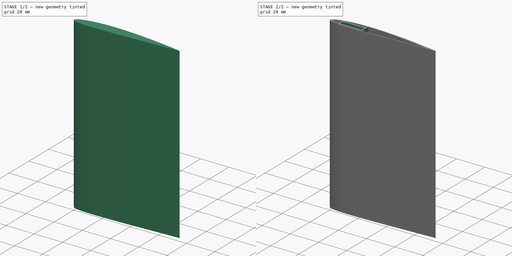
[diagram: build sequence overview — one tinted view per stage of 2, left to right]
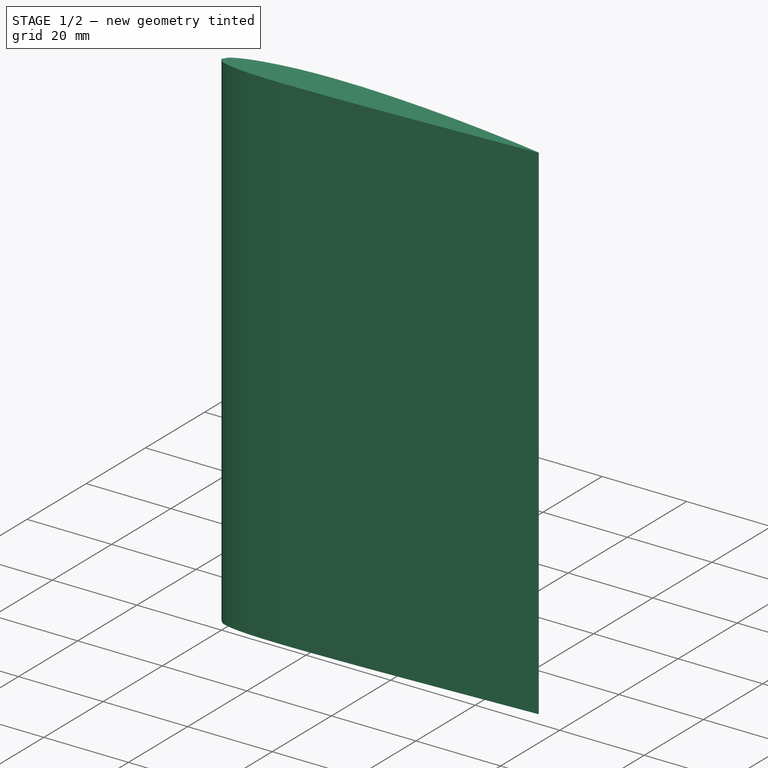
[diagram: stage 1 of 2 — iso view after this stage's code; geometry added in this stage tinted green]
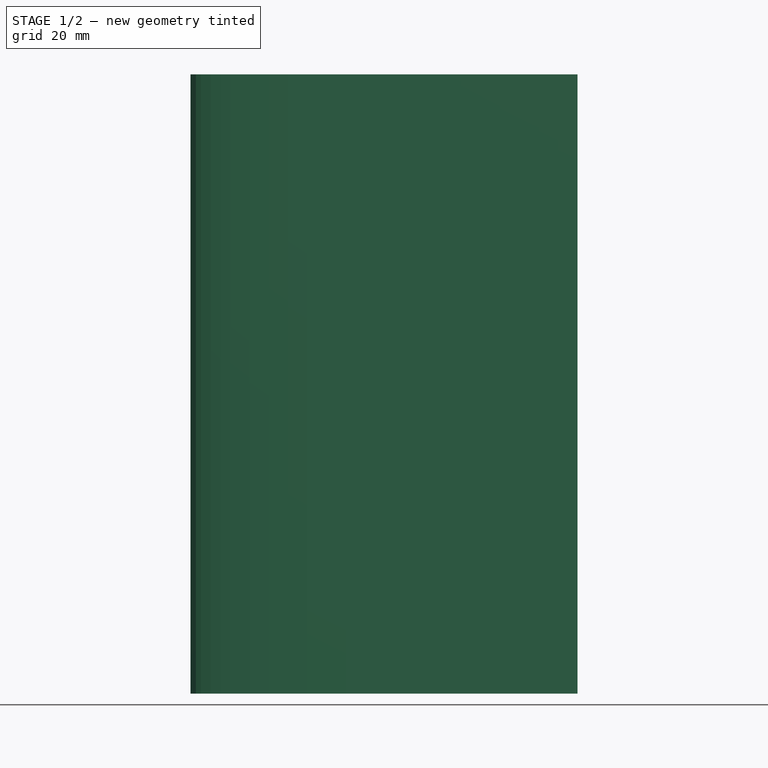
[diagram: stage 1 of 2 — front view after this stage's code; geometry added in this stage tinted green]
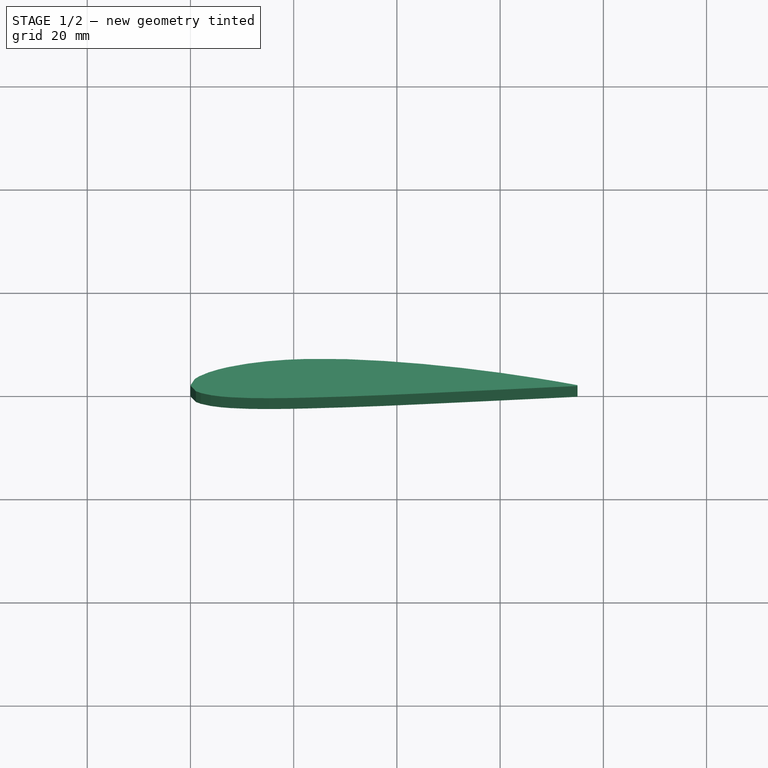
[diagram: stage 1 of 2 — top view after this stage's code; geometry added in this stage tinted green]
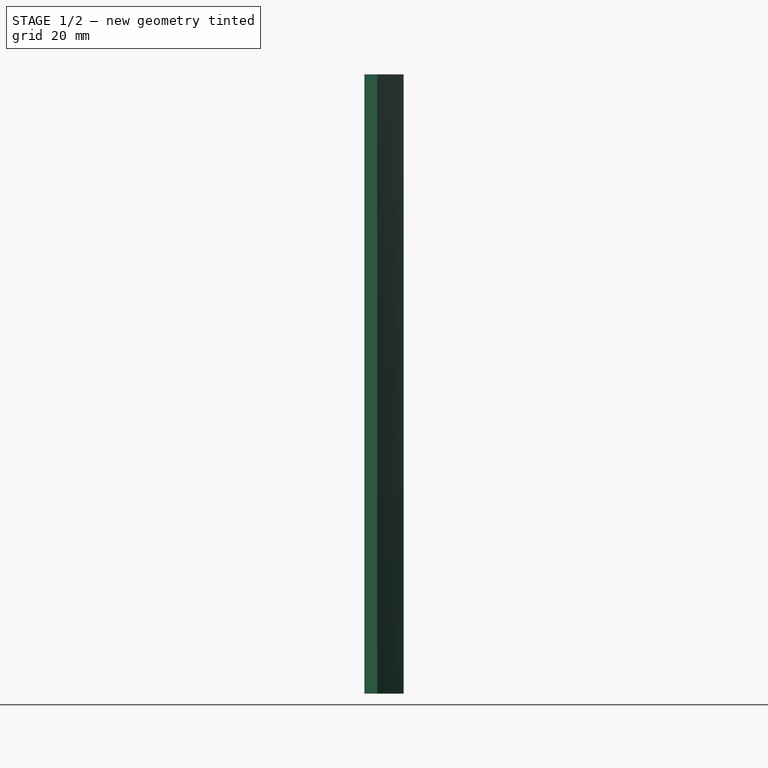
[diagram: stage 1 of 2 — right view after this stage's code; geometry added in this stage tinted green]
FCSTD DOCUMENT  (FreeCAD 0.16R6712 (Git))
Label: Aile_double_milieu
License: All rights reserved
LicenseURL: http://en.wikipedia.org/wiki/All_rights_reserved
objects: PartDesign::Pad×3, Part::Part2DObjectPython×2, Part::Cut×1, Sketcher::SketchObject×1
note: 10 computed .brp shape members not serialized (recipe doc carries the construction recipe); baked Part::Feature solids carry a one-line shape summary decoded from their .brp

FEATURE [Part::Part2DObjectPython] DWire  # Draft 2D object (typed FeaturePython)
  ChamferSize = 0
  Closed = true
  End = (75,-0.07875,0)
  FilletRadius = 0
  Length = 152.352
  MakeFace = true
  Points = (35) [(75,0.07875,0),(71.2807,0.7425,0),(67.5502,1.362,0),(60.0727,2.472,0),(52.5765,3.41325,0),(45.0637,4.185,0),(37.5367,4.767,0),(30,5.12775,0),+27 more]
  Start = (75,0.07875,0)
  Subdivisions = 0
FEATURE [PartDesign::Pad] Pad
  Length = 120
  Length2 = 100
  Sketch = -> DWire
  Type = 0
FEATURE [Part::Part2DObjectPython] DWire001  # Draft 2D object (typed FeaturePython)
  ChamferSize = 0
  Closed = true
  End = (67,0.08175,0)
  FilletRadius = 0
  Length = 132.038
  MakeFace = true
  Placement = pos=(2,0.15,0) rot=(0,0,1;0rad)
  Points = (35) [(65,0.06825,0),(61.7766,0.6435,0),(58.5435,1.1804,0),(52.063,2.1424,0),(45.5663,2.95815,0),(39.0553,3.627,0),(32.5318,4.1314,0),(26,4.44405,0),+27 more]
  Start = (67,0.21825,0)
  Subdivisions = 0
FEATURE [PartDesign::Pad] Pad001
  Length = 120
  Length2 = 100
  Placement = pos=(2,0.15,0) rot=(0,0,1;0rad)
  Sketch = -> DWire001
  Type = 0
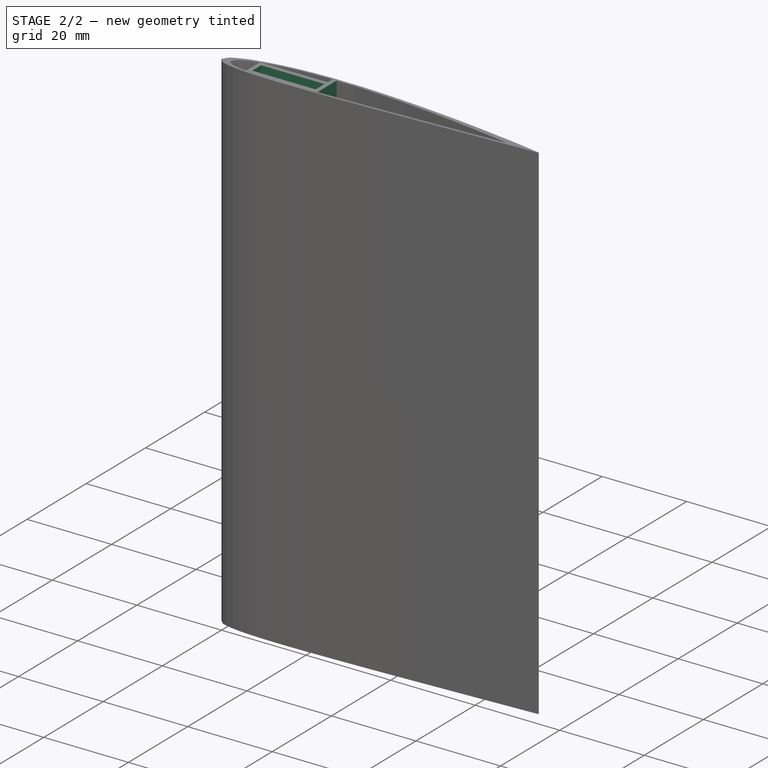
[diagram: stage 2 of 2 — iso view after this stage's code; geometry added in this stage tinted green]
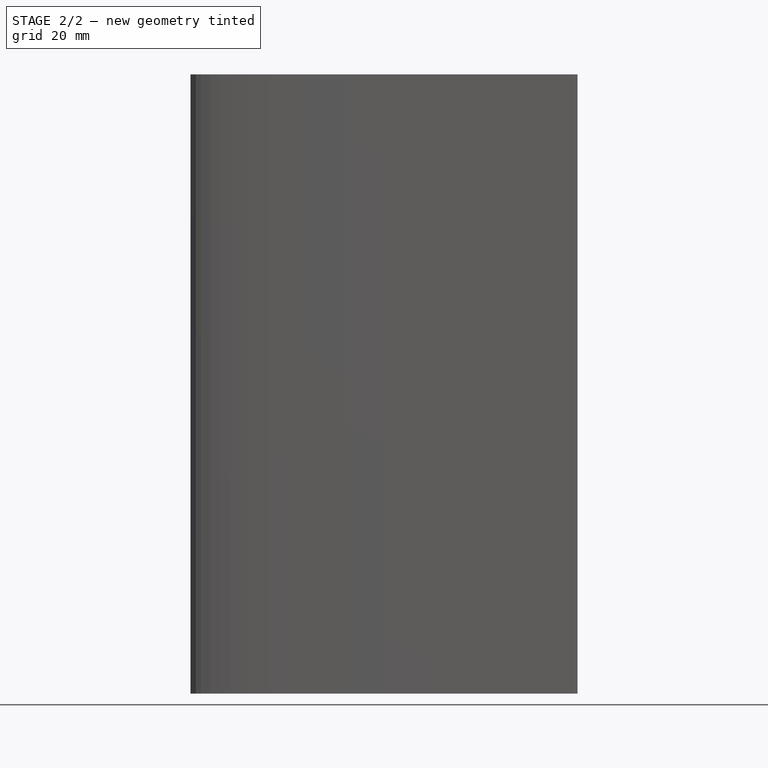
[diagram: stage 2 of 2 — front view after this stage's code; geometry added in this stage tinted green]
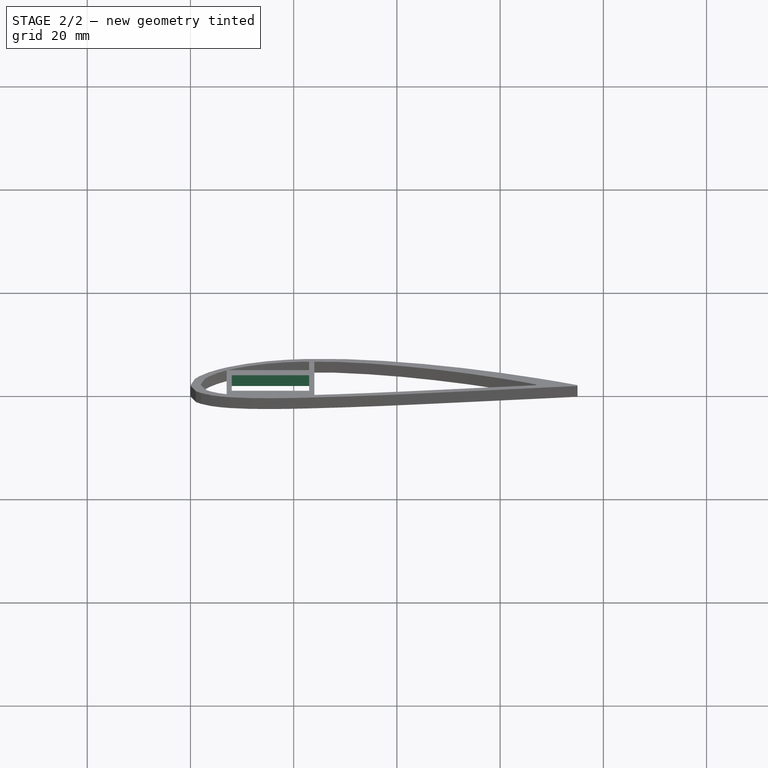
[diagram: stage 2 of 2 — top view after this stage's code; geometry added in this stage tinted green]
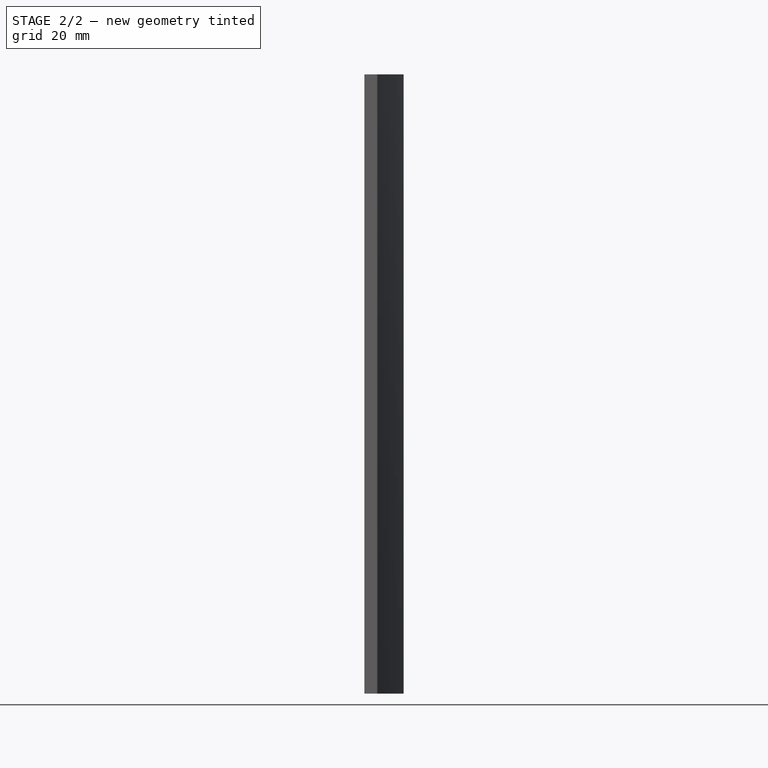
[diagram: stage 2 of 2 — right view after this stage's code; geometry added in this stage tinted green]
FEATURE [Part::Cut] Cut
  Base = -> Pad
  Tool = -> Pad001
FEATURE [Sketcher::SketchObject] Sketch
  ExternalGeometry = -> [Cut]
  Placement = pos=(0,0,0) rot=(1,0,0;3.14159rad)
  Support = -> Cut [Face4]
  sketch-geometry (17):
    g0: LineSegment StartX=8 StartY=1 StartZ=0 EndX=23 EndY=1 EndZ=0
    g1: LineSegment StartX=23 StartY=1 StartZ=0 EndX=23 EndY=-2 EndZ=0
    g2: LineSegment StartX=23 StartY=-2 StartZ=0 EndX=8 EndY=-2 EndZ=0
    g3: LineSegment StartX=8 StartY=-2 StartZ=0 EndX=8 EndY=1 EndZ=0
    g4: LineSegment StartX=7 StartY=1.66822 StartZ=0 EndX=7 EndY=-2.93383 EndZ=0
    g5: LineSegment StartX=24 StartY=1.81071 StartZ=0 EndX=24 EndY=-4.60906 EndZ=0
    g6: LineSegment StartX=7.2763 StartY=-3 StartZ=0 EndX=23 EndY=-3 EndZ=0
    g7: LineSegment StartX=23 StartY=-3 StartZ=0 EndX=23 EndY=-4.61282 EndZ=0
    g8: LineSegment StartX=7 StartY=-2.93383 StartZ=0 EndX=7.2763 EndY=-3 EndZ=0
    g9: LineSegment StartX=7 StartY=1.66822 StartZ=0 EndX=7.05895 EndY=1.67585 EndZ=0
    g10: LineSegment StartX=23 StartY=-4.61282 StartZ=0 EndX=24 EndY=-4.60906 EndZ=0
    g11: LineSegment StartX=7.05895 StartY=1.67585 StartZ=0 EndX=8.6885 EndY=1.8104 EndZ=0
    g12: LineSegment StartX=8.6885 StartY=1.8104 StartZ=0 EndX=11.9307 EndY=1.94755 EndZ=0
    g13: LineSegment StartX=11.9307 StartY=1.94755 StartZ=0 EndX=15.1554 EndY=1.9794 EndZ=0
    g14: LineSegment StartX=15.1554 StartY=1.9794 StartZ=0 EndX=18.3709 EndY=1.9495 EndZ=0
    g15: LineSegment StartX=18.3709 StartY=1.9495 StartZ=0 EndX=21.5813 EndY=1.88125 EndZ=0
    g16: LineSegment StartX=21.5813 StartY=1.88125 StartZ=0 EndX=24 EndY=1.81071 EndZ=0
  constraints (45):
    c: Coincident(g0,g1)
    c: Coincident(g1,g2)
    c: Coincident(g2,g3)
    c: Coincident(g3,g0)
    c: Horizontal(g0)
    c: Horizontal(g2)
    c: Vertical(g1)
    c: Vertical(g3)
    c: DistanceX(g2,g2) = 15
    c: DistanceY(g3,g3) = 3
    c: DistanceX(g-1,g0) = 8
    c: DistanceY(g-1,g0) = 1
    c: Vertical(g4)
    c: Vertical(g5)
    c: Horizontal(g6)
    c: DistanceX(g4,g2) = 1
    c: DistanceX(g0,g5) = 1
    c: Vertical(g7)
    c: DistanceX(g6,g5) = 1
    c: Coincident(g6,g7)
    c: PointOnObject(g7,g-4)
    c: PointOnObject(g5,g-4)
    c: PointOnObject(g5,g-5)
    c: PointOnObject(g4,g-3)
    c: PointOnObject(g6,g-3)
    c: PointOnObject(g4,g-6)
    c: DistanceY(g6,g1) = 1
    c: Coincident(g8,g4)
    c: Coincident(g8,g6)
    c: Coincident(g9,g4)
    c: Coincident(g9,g-6)
    c: Coincident(g10,g7)
    c: Coincident(g10,g5)
    c: Coincident(g11,g9)
    c: Coincident(g11,g-8)
    c: Coincident(g12,g11)
    c: Coincident(g12,g-9)
    c: Coincident(g13,g12)
    c: Coincident(g13,g-10)
    c: Coincident(g14,g13)
    c: Coincident(g14,g-11)
    c: Coincident(g15,g14)
    c: Coincident(g15,g-11)
    c: Coincident(g16,g5)
    c: Coincident(g15,g16)
FEATURE [PartDesign::Pad] Pad002
  Length = 120
  Length2 = 100
  Reversed = true
  Sketch = -> Sketch
  Type = 0
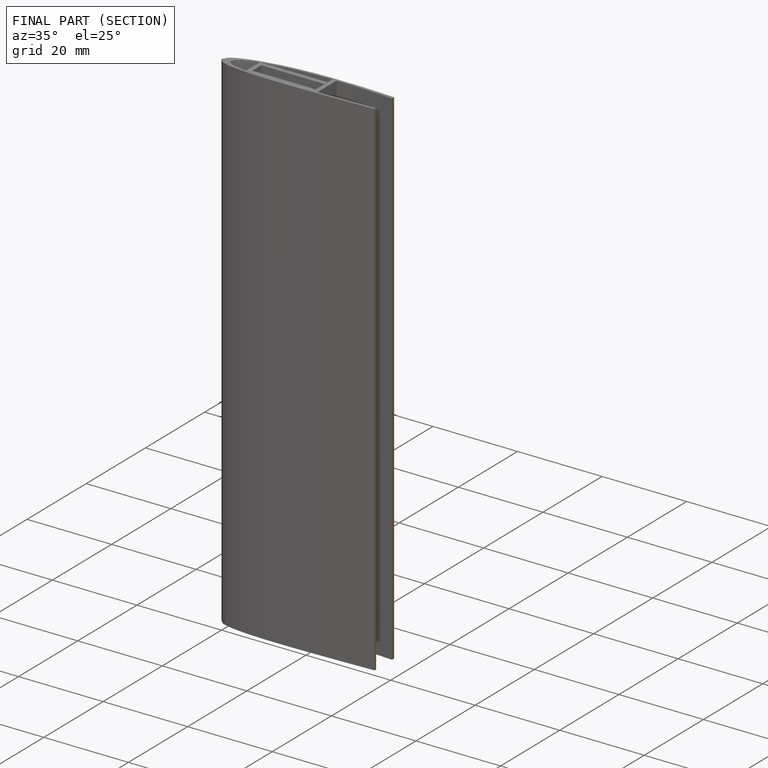
[diagram: finished part — half-section view (interior)]
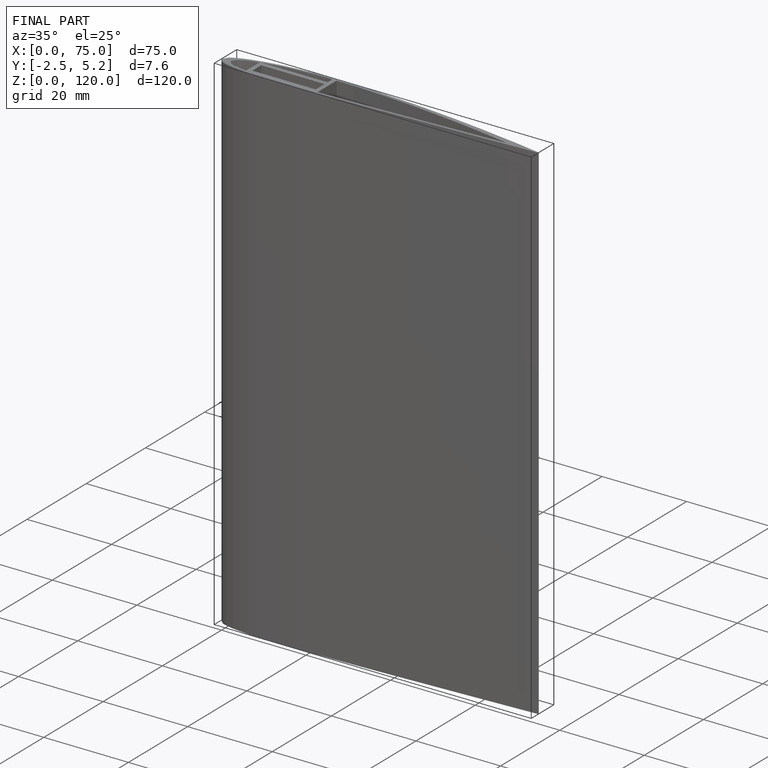
[diagram: finished part — iso view with bounding-box wireframe]
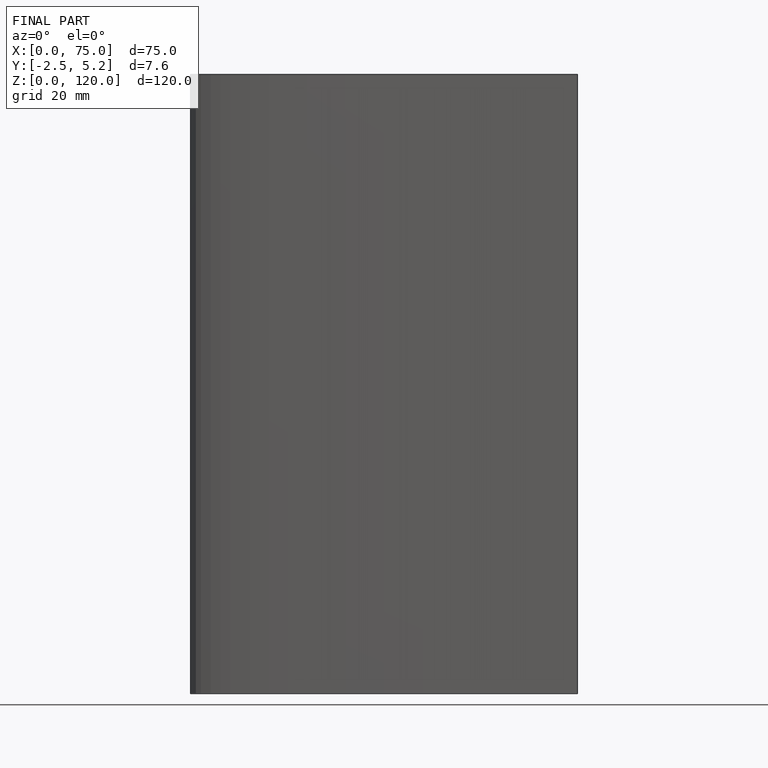
[diagram: finished part — front view with bounding-box wireframe]
